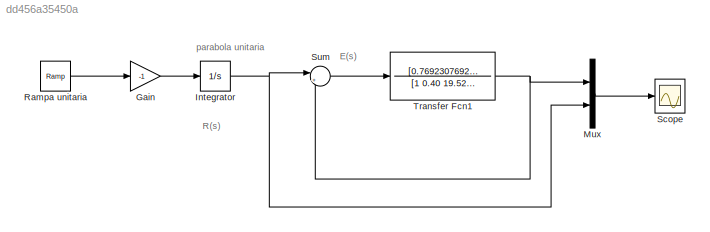
MODEL slx_dd456a35450a
KIND model
BLOCK [Gain] Gain
  Gain = -1
  OutDataTypeStr = Inherit: Inherit via internal rule
  ParamDataTypeStr = Inherit: Inherit via internal rule
  SaturateOnIntegerOverflow = off
BLOCK [Integrator] Integrator
  Ports = [1, 1]
BLOCK [Mux] Mux
  DisplayOption = bar
  Inputs = 2
  Ports = [2, 1]
BLOCK [Reference] Rampa unitaria  REF=simulink/Sources/Ramp
  Ports = [0, 1]
  SourceBlock = simulink/Sources/Ramp
  SourceType = Ramp
  VectorParams1D = on
  X0 = 0
  slope = 1
  start = 0
BLOCK [Scope] Scope
  Floating = off
  NumInputPorts = 1
  Ports = [1]
  ShowLegends = off
  YMax = 32500
  YMin = 5000
  ZoomMode = yonly
BLOCK [Sum] Sum
  IconShape = round
  InputSameDT = off
  Inputs = |+-
  OutDataTypeStr = Inherit: Inherit via internal rule
  Ports = [2, 1]
  SaturateOnIntegerOverflow = off
BLOCK [TransferFcn] Transfer Fcn1
  Denominator = [1 0.40 19.52969699 6.018865026]
  Numerator = [0.7692307692 0.3076923077 15.02284384]
ANNOTATION (root): E(s)
ANNOTATION (root): R(s)
ANNOTATION (root): parabola unitaria
LINE Gain:1 -> Integrator:1
NET Integrator:1 -> Mux:2, Sum:1
LINE Mux:1 -> Scope:1
LINE Rampa unitaria:1 -> Gain:1
LINE Sum:1 -> Transfer Fcn1:1
NET Transfer Fcn1:1 -> Mux:1, Sum:2
note: NET lines group one-source signal fan-out (src -> all destinations, sorted); 1:1 wires keep LINE
